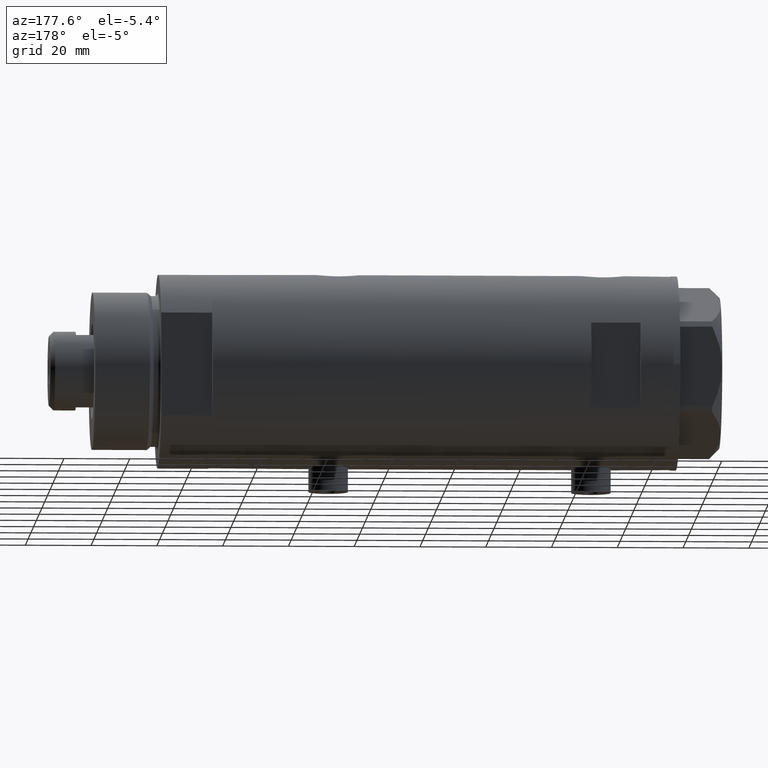
[diagram: clean part render]
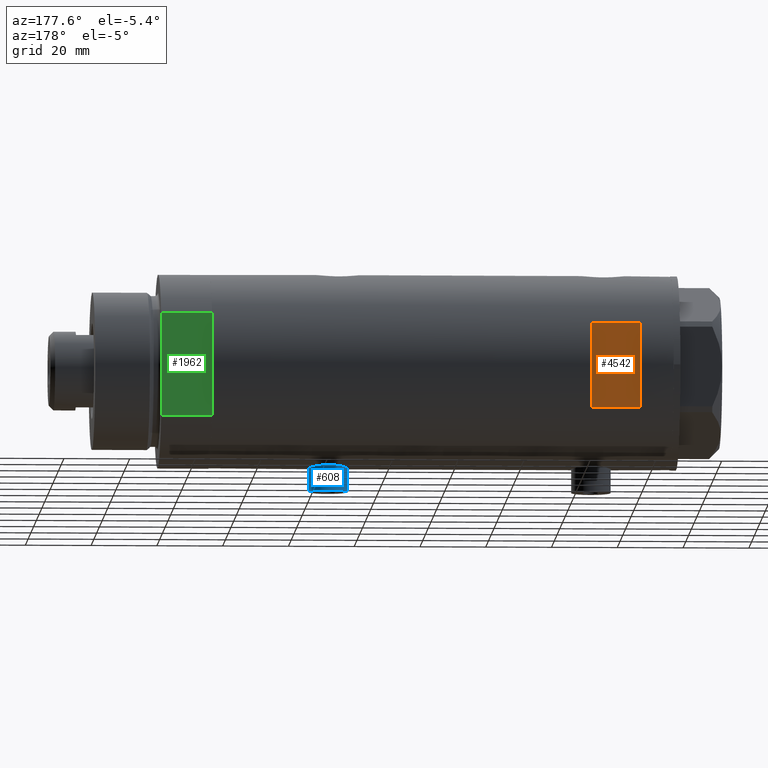
[diagram: same view with three faces highlighted in distinct colors, each labeled with its STEP entity id]
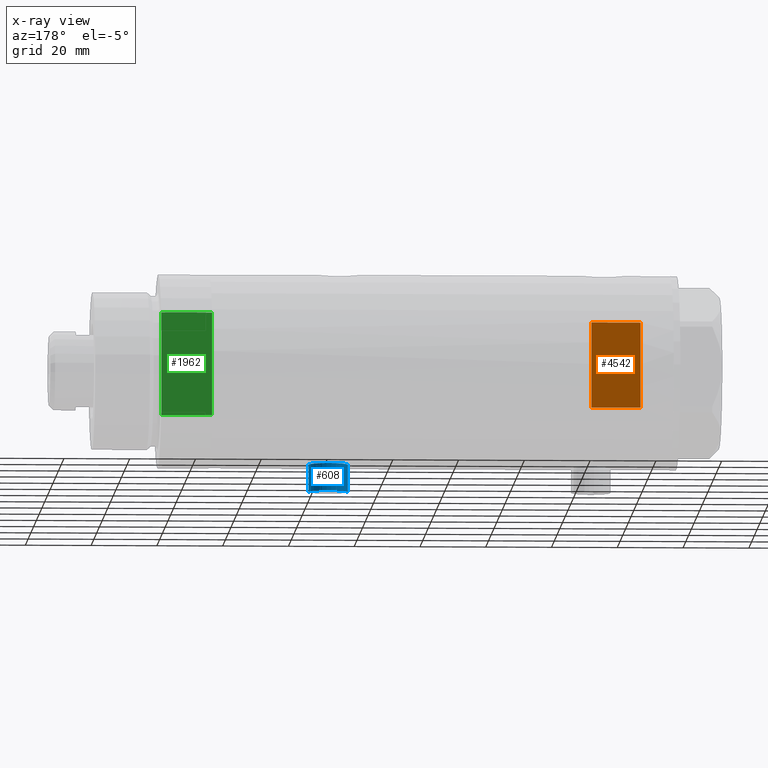
[diagram: x-ray of the same camera — body ghosted, the three highlighted faces saturated]
A machine part, auxiliary view with three faces highlighted in distinct colors.
The next image is the same camera in x-ray (body ghosted, the three faces saturated) — at least one of them is partly hidden behind the body in this view.
Their STEP definitions:

[orange] entity #4542 — the highlighted planar face has unit normal (0, -1, -0).
#123 = DIRECTION ( 'NONE',  ( 1.000000000000000000, -0.000000000000000000, -0.000000000000000000 ) ) ;
#178 = CARTESIAN_POINT ( 'NONE',  ( -29.50000000000000355, 26.50000000000000355, 60.09999999999998721 ) ) ;
#636 = VERTEX_POINT ( 'NONE', #2953 ) ;
#781 = CARTESIAN_POINT ( 'NONE',  ( 12.96148139681573319, 26.49999999999999645, -70.09999999999999432 ) ) ;
#904 = VECTOR ( 'NONE', #3384, 1000.000000000000000 ) ;
#933 = CARTESIAN_POINT ( 'NONE',  ( 12.96148139681573319, 26.49999999999998934, 60.09999999999998721 ) ) ;
#985 = VECTOR ( 'NONE', #123, 1000.000000000000000 ) ;
#1042 = VERTEX_POINT ( 'NONE', #4281 ) ;
#1076 = DIRECTION ( 'NONE',  ( 0.000000000000000000, 0.000000000000000000, -1.000000000000000000 ) ) ;
#1188 = LINE ( 'NONE', #781, #904 ) ;
#1220 = DIRECTION ( 'NONE',  ( 1.000000000000000000, -0.000000000000000000, -0.000000000000000000 ) ) ;
#1481 = ORIENTED_EDGE ( 'NONE', *, *, #4708, .T. ) ;
#1587 = ORIENTED_EDGE ( 'NONE', *, *, #2877, .F. ) ;
#1805 = FACE_OUTER_BOUND ( 'NONE', #3619, .T. ) ;
#1950 = EDGE_CURVE ( 'NONE', #636, #2987, #4601, .T. ) ;
#2245 = LINE ( 'NONE', #2291, #985 ) ;
#2291 = CARTESIAN_POINT ( 'NONE',  ( -29.50000000000000355, 26.50000000000000355, 45.09999999999998721 ) ) ;
#2318 = EDGE_CURVE ( 'NONE', #2987, #4275, #3123, .T. ) ;
#2468 = AXIS2_PLACEMENT_3D ( 'NONE', #3288, #3677, #1076 ) ;
#2588 = PLANE ( 'NONE',  #2468 ) ;
#2804 = DIRECTION ( 'NONE',  ( 0.000000000000000000, 0.000000000000000000, 1.000000000000000000 ) ) ;
#2877 = EDGE_CURVE ( 'NONE', #636, #1042, #2245, .T. ) ;
#2953 = CARTESIAN_POINT ( 'NONE',  ( -12.96148139681574030, 26.50000000000000355, 45.09999999999998721 ) ) ;
#2987 = VERTEX_POINT ( 'NONE', #3063 ) ;
#3063 = CARTESIAN_POINT ( 'NONE',  ( -12.96148139681573319, 26.49999999999998934, 60.09999999999998721 ) ) ;
#3071 = VECTOR ( 'NONE', #2804, 1000.000000000000000 ) ;
#3078 = VECTOR ( 'NONE', #1220, 1000.000000000000000 ) ;
#3123 = LINE ( 'NONE', #178, #3078 ) ;
#3206 = CARTESIAN_POINT ( 'NONE',  ( -12.96148139681573319, 26.49999999999999645, -70.09999999999999432 ) ) ;
#3288 = CARTESIAN_POINT ( 'NONE',  ( -29.50000000000000355, 26.50000000000000355, 60.09999999999998721 ) ) ;
#3384 = DIRECTION ( 'NONE',  ( -0.000000000000000000, -0.000000000000000000, -1.000000000000000000 ) ) ;
#3619 = EDGE_LOOP ( 'NONE', ( #1481, #1587, #4355, #4575 ) ) ;
#3677 = DIRECTION ( 'NONE',  ( 0.000000000000000000, -1.000000000000000000, -0.000000000000000000 ) ) ;
#4275 = VERTEX_POINT ( 'NONE', #933 ) ;
#4281 = CARTESIAN_POINT ( 'NONE',  ( 12.96148139681571898, 26.50000000000000355, 45.09999999999998721 ) ) ;
#4355 = ORIENTED_EDGE ( 'NONE', *, *, #1950, .T. ) ;
#4542 = ADVANCED_FACE ( 'NONE', ( #1805 ), #2588, .F. ) ;
#4575 = ORIENTED_EDGE ( 'NONE', *, *, #2318, .T. ) ;
#4601 = LINE ( 'NONE', #3206, #3071 ) ;
#4708 = EDGE_CURVE ( 'NONE', #4275, #1042, #1188, .T. ) ;

[blue] entity #608 — the highlighted cylindrical surface (edge-blend (fillet) strip) has radius 6 mm, axis along (0, 0, 1).
#33 = AXIS2_PLACEMENT_3D ( 'NONE', #3510, #181, #1695 ) ;
#48 = CIRCLE ( 'NONE', #3080, 6.000000000000001776 ) ;
#120 = ORIENTED_EDGE ( 'NONE', *, *, #3734, .T. ) ;
#181 = DIRECTION ( 'NONE',  ( -1.000000000000000000, 0.000000000000000000, 0.000000000000000000 ) ) ;
#388 = EDGE_CURVE ( 'NONE', #1791, #4648, #1474, .T. ) ;
#420 = CARTESIAN_POINT ( 'NONE',  ( -36.60000000000000142, 7.347880794884121708E-16, -27.79999999999999361 ) ) ;
#608 = ADVANCED_FACE ( 'NONE', ( #4791 ), #4750, .T. ) ;
#733 = AXIS2_PLACEMENT_3D ( 'NONE', #3341, #2182, #4061 ) ;
#1041 = VECTOR ( 'NONE', #2597, 1000.000000000000000 ) ;
#1105 = CARTESIAN_POINT ( 'NONE',  ( -36.60000000000000142, 0.000000000000000000, -39.80000000000000426 ) ) ;
#1135 = EDGE_CURVE ( 'NONE', #3214, #1791, #3066, .T. ) ;
#1147 = ORIENTED_EDGE ( 'NONE', *, *, #1135, .F. ) ;
#1167 = DIRECTION ( 'NONE',  ( 0.000000000000000000, 0.000000000000000000, 1.000000000000000000 ) ) ;
#1474 = LINE ( 'NONE', #1105, #1041 ) ;
#1695 = DIRECTION ( 'NONE',  ( 0.000000000000000000, 0.000000000000000000, 1.000000000000000000 ) ) ;
#1791 = VERTEX_POINT ( 'NONE', #3477 ) ;
#2008 = VERTEX_POINT ( 'NONE', #3523 ) ;
#2182 = DIRECTION ( 'NONE',  ( 1.000000000000000000, -0.000000000000000000, -0.000000000000000000 ) ) ;
#2223 = CARTESIAN_POINT ( 'NONE',  ( -28.30000000000000071, 0.000000000000000000, -33.79999999999999716 ) ) ;
#2597 = DIRECTION ( 'NONE',  ( 1.000000000000000000, -0.000000000000000000, -0.000000000000000000 ) ) ;
#2645 = DIRECTION ( 'NONE',  ( 1.000000000000000000, -0.000000000000000000, -0.000000000000000000 ) ) ;
#3066 = CIRCLE ( 'NONE', #33, 6.000000000000001776 ) ;
#3080 = AXIS2_PLACEMENT_3D ( 'NONE', #2223, #3706, #1167 ) ;
#3214 = VERTEX_POINT ( 'NONE', #4386 ) ;
#3341 = CARTESIAN_POINT ( 'NONE',  ( -36.60000000000000142, 0.000000000000000000, -33.79999999999999716 ) ) ;
#3361 = LINE ( 'NONE', #420, #4383 ) ;
#3477 = CARTESIAN_POINT ( 'NONE',  ( -36.60000000000000142, 0.000000000000000000, -39.80000000000000426 ) ) ;
#3510 = CARTESIAN_POINT ( 'NONE',  ( -36.60000000000000142, 0.000000000000000000, -33.79999999999999716 ) ) ;
#3523 = CARTESIAN_POINT ( 'NONE',  ( -28.30000000000000071, 7.347880794884123680E-16, -27.79999999999999005 ) ) ;
#3706 = DIRECTION ( 'NONE',  ( -1.000000000000000000, 0.000000000000000000, 0.000000000000000000 ) ) ;
#3734 = EDGE_CURVE ( 'NONE', #3214, #2008, #3361, .T. ) ;
#3771 = CARTESIAN_POINT ( 'NONE',  ( -28.30000000000000071, 0.000000000000000000, -39.80000000000000426 ) ) ;
#3942 = ORIENTED_EDGE ( 'NONE', *, *, #4568, .T. ) ;
#4050 = ORIENTED_EDGE ( 'NONE', *, *, #388, .F. ) ;
#4061 = DIRECTION ( 'NONE',  ( 0.000000000000000000, 0.000000000000000000, -1.000000000000000000 ) ) ;
#4383 = VECTOR ( 'NONE', #2645, 1000.000000000000000 ) ;
#4386 = CARTESIAN_POINT ( 'NONE',  ( -36.60000000000000142, 7.347880794884123680E-16, -27.79999999999999005 ) ) ;
#4488 = EDGE_LOOP ( 'NONE', ( #1147, #120, #3942, #4050 ) ) ;
#4568 = EDGE_CURVE ( 'NONE', #2008, #4648, #48, .T. ) ;
#4648 = VERTEX_POINT ( 'NONE', #3771 ) ;
#4750 = CYLINDRICAL_SURFACE ( 'NONE', #733, 6.000000000000005329 ) ;
#4791 = FACE_OUTER_BOUND ( 'NONE', #4488, .T. ) ;

[green] entity #1962 — the highlighted planar face has unit normal (0, -1, -0).
#21 = ORIENTED_EDGE ( 'NONE', *, *, #3987, .F. ) ;
#76 = CARTESIAN_POINT ( 'NONE',  ( -15.66045976336583401, 25.00000000000000000, 0.000000000000000000 ) ) ;
#124 = VECTOR ( 'NONE', #2131, 1000.000000000000000 ) ;
#175 = ORIENTED_EDGE ( 'NONE', *, *, #3211, .F. ) ;
#254 = LINE ( 'NONE', #3223, #124 ) ;
#268 = VERTEX_POINT ( 'NONE', #3326 ) ;
#296 = CARTESIAN_POINT ( 'NONE',  ( 15.66045976336583045, 25.00000000000000000, 15.50000000000000000 ) ) ;
#317 = CARTESIAN_POINT ( 'NONE',  ( -15.66045976336583401, 25.00000000000000000, 0.000000000000000000 ) ) ;
#334 = LINE ( 'NONE', #3593, #2473 ) ;
#368 = EDGE_LOOP ( 'NONE', ( #1560, #175, #21, #3228, #1993, #2665 ) ) ;
#385 = VERTEX_POINT ( 'NONE', #2234 ) ;
#829 = DIRECTION ( 'NONE',  ( 1.000000000000000000, 0.000000000000000000, 0.000000000000000000 ) ) ;
#975 = AXIS2_PLACEMENT_3D ( 'NONE', #3187, #4628, #1400 ) ;
#1133 = VECTOR ( 'NONE', #829, 1000.000000000000000 ) ;
#1198 = VECTOR ( 'NONE', #3524, 1000.000000000000000 ) ;
#1400 = DIRECTION ( 'NONE',  ( 0.000000000000000000, -0.000000000000000000, -1.000000000000000000 ) ) ;
#1443 = EDGE_CURVE ( 'NONE', #4430, #2789, #2506, .T. ) ;
#1560 = ORIENTED_EDGE ( 'NONE', *, *, #1443, .T. ) ;
#1601 = VECTOR ( 'NONE', #3265, 1000.000000000000000 ) ;
#1634 = LINE ( 'NONE', #3452, #4692 ) ;
#1962 = ADVANCED_FACE ( 'NONE', ( #3232 ), #3911, .F. ) ;
#1993 = ORIENTED_EDGE ( 'NONE', *, *, #2550, .F. ) ;
#2104 = VERTEX_POINT ( 'NONE', #3938 ) ;
#2131 = DIRECTION ( 'NONE',  ( 1.000000000000000000, 0.000000000000000000, 0.000000000000000000 ) ) ;
#2197 = VERTEX_POINT ( 'NONE', #4113 ) ;
#2234 = CARTESIAN_POINT ( 'NONE',  ( 7.141428428542853091, 25.00000000000000000, 0.000000000000000000 ) ) ;
#2361 = EDGE_CURVE ( 'NONE', #2104, #385, #2568, .T. ) ;
#2473 = VECTOR ( 'NONE', #4359, 1000.000000000000000 ) ;
#2506 = LINE ( 'NONE', #3891, #1198 ) ;
#2550 = EDGE_CURVE ( 'NONE', #2197, #2104, #2614, .T. ) ;
#2568 = LINE ( 'NONE', #317, #1601 ) ;
#2614 = LINE ( 'NONE', #76, #1133 ) ;
#2615 = CARTESIAN_POINT ( 'NONE',  ( -15.66045976336583045, 25.00000000000000000, 15.50000000000000000 ) ) ;
#2665 = ORIENTED_EDGE ( 'NONE', *, *, #4580, .T. ) ;
#2789 = VERTEX_POINT ( 'NONE', #296 ) ;
#3096 = DIRECTION ( 'NONE',  ( -0.000000000000000000, -0.000000000000000000, 1.000000000000000000 ) ) ;
#3187 = CARTESIAN_POINT ( 'NONE',  ( -15.66045976336583401, 25.00000000000000000, 0.000000000000000000 ) ) ;
#3211 = EDGE_CURVE ( 'NONE', #268, #2789, #334, .T. ) ;
#3223 = CARTESIAN_POINT ( 'NONE',  ( -15.66045976336583401, 25.00000000000000000, 0.000000000000000000 ) ) ;
#3228 = ORIENTED_EDGE ( 'NONE', *, *, #2361, .F. ) ;
#3232 = FACE_OUTER_BOUND ( 'NONE', #368, .T. ) ;
#3265 = DIRECTION ( 'NONE',  ( 1.000000000000000000, 0.000000000000000000, 0.000000000000000000 ) ) ;
#3326 = CARTESIAN_POINT ( 'NONE',  ( 15.66045976336582690, 25.00000000000000000, 0.000000000000000000 ) ) ;
#3452 = CARTESIAN_POINT ( 'NONE',  ( -15.66045976336583401, 25.00000000000000000, 0.000000000000000000 ) ) ;
#3524 = DIRECTION ( 'NONE',  ( 1.000000000000000000, 0.000000000000000000, 0.000000000000000000 ) ) ;
#3593 = CARTESIAN_POINT ( 'NONE',  ( 15.66045976336583401, 25.00000000000000000, 0.000000000000000000 ) ) ;
#3891 = CARTESIAN_POINT ( 'NONE',  ( -15.66045976336583401, 25.00000000000000000, 15.50000000000000000 ) ) ;
#3911 = PLANE ( 'NONE',  #975 ) ;
#3938 = CARTESIAN_POINT ( 'NONE',  ( -7.141428428542853091, 25.00000000000000000, 0.000000000000000000 ) ) ;
#3987 = EDGE_CURVE ( 'NONE', #385, #268, #254, .T. ) ;
#4113 = CARTESIAN_POINT ( 'NONE',  ( -15.66045976336583401, 25.00000000000000000, 0.000000000000000000 ) ) ;
#4359 = DIRECTION ( 'NONE',  ( -0.000000000000000000, -0.000000000000000000, 1.000000000000000000 ) ) ;
#4430 = VERTEX_POINT ( 'NONE', #2615 ) ;
#4580 = EDGE_CURVE ( 'NONE', #2197, #4430, #1634, .T. ) ;
#4628 = DIRECTION ( 'NONE',  ( 0.000000000000000000, -1.000000000000000000, 0.000000000000000000 ) ) ;
#4692 = VECTOR ( 'NONE', #3096, 1000.000000000000000 ) ;